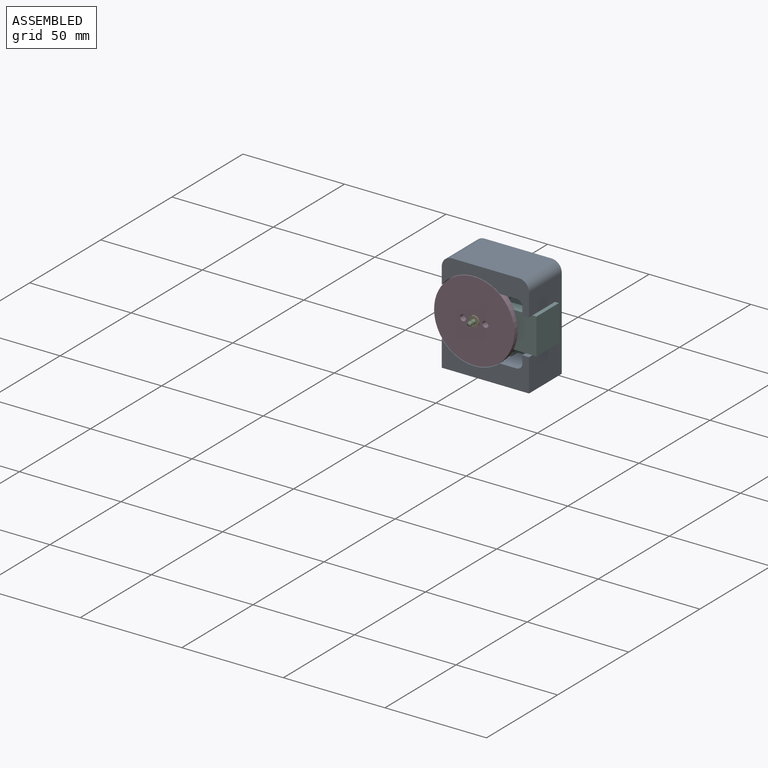
[diagram: assembled view]
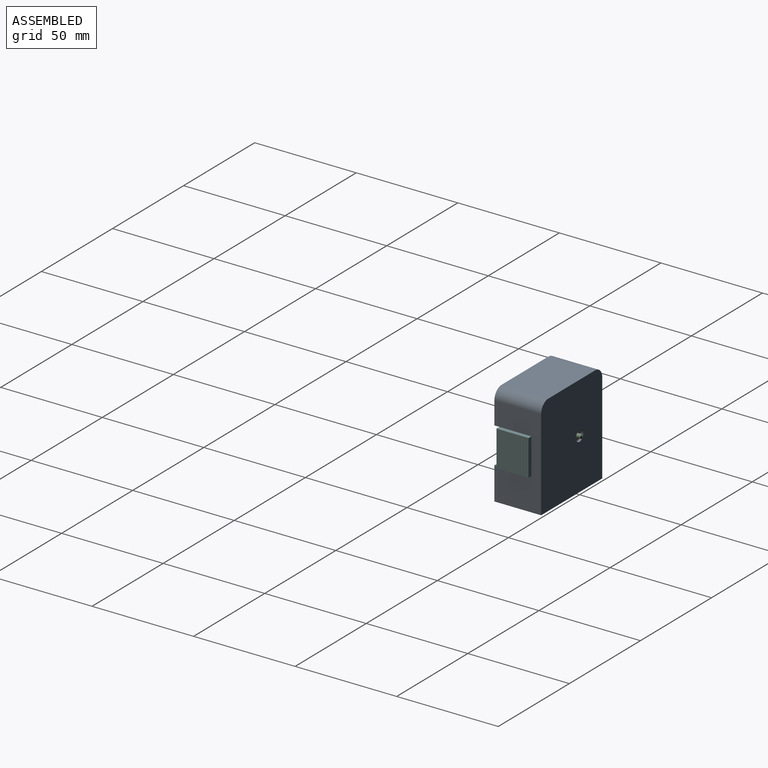
[diagram: assembled view, second angle]
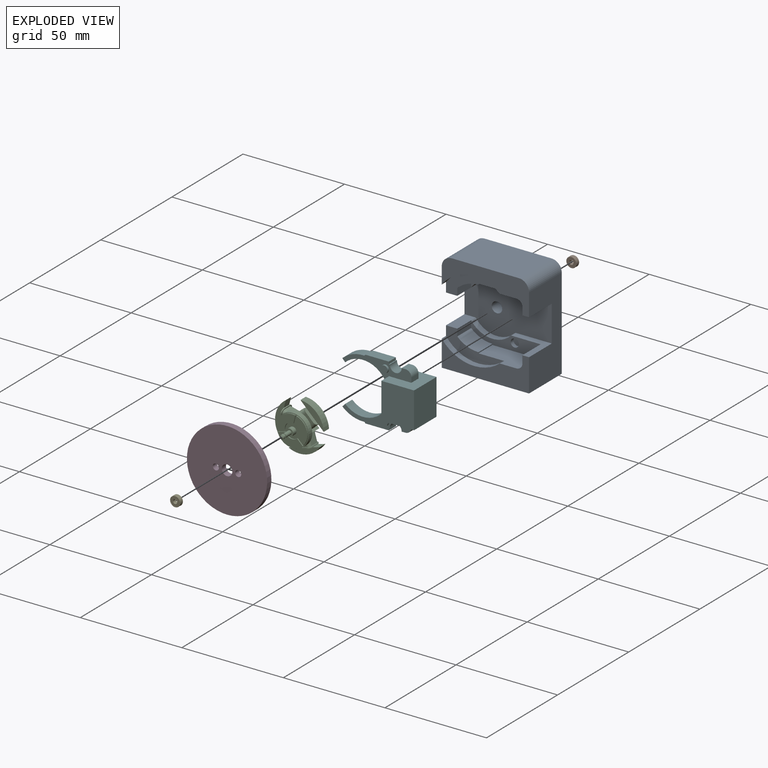
[diagram: exploded view]
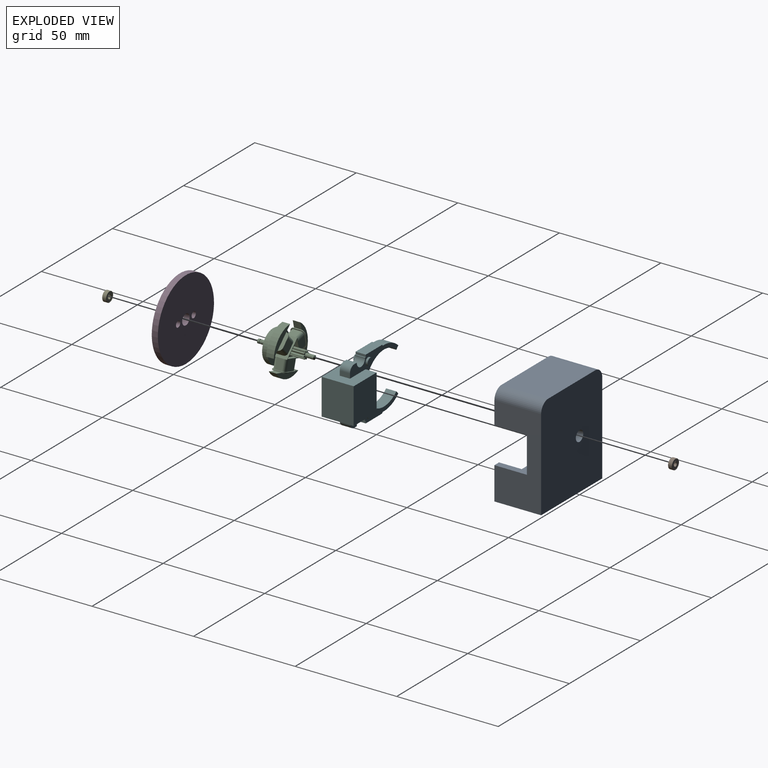
[diagram: exploded view, second angle]
ASSEMBLY  parts=6 mates=5
PART A: 39 faces, bbox 43x23x50 mm
  f0: plane 34.2x8.2mm, normal (0,-1,0), area 145.4mm2, adj f9,f10,f22,f23,f24,f25,f26,f27
  f1: plane 43x25.5mm, normal (0,-1,0), area 819.7mm2, adj f3,f5,f6,f8,f9,f10,f11,f12
  f2: plane 33x23mm, normal (0,0,1), area 759mm2, adj f7,f34,f37,f38
  f3: plane 45x23mm, normal (-1,0,0), area 773.1mm2, adj f1,f4,f7,f8,f12,f21,f28,f33
  f4: plane 43x23mm, normal (0,0,-1), area 989mm2, adj f3,f6,f7,f36
  f5: cylinder r=2.6mm len=7mm, axis (0,1,0), area 114.4mm2, adj f1,f7
  f6: plane 45x23mm, normal (1,0,0), area 751.8mm2, adj f1,f4,f7,f10,f13,f34,f36,f37
  f7: plane 50x43mm, normal (0,1,0), area 2118mm2, adj f2,f3,f4,f5,f6,f37,f38
  f8: plane 13x5.55mm, normal (0,0,-1), area 72.2mm2, adj f1,f3,f9,f23,f28
  f9: cylinder r=12.75mm len=19.63mm, axis (0,1,0), area 72mm2, adj f0,f1,f8,f10
  f10: plane 17.82x16mm, normal (0,0,-1), area 98.6mm2, adj f0,f1,f6,f9,f22,f34
  f11: cylinder r=12.75mm len=19.63mm, axis (0,1,0), area 72mm2, adj f1,f12,f13,f14
  f12: plane 13x5.55mm, normal (0,0,1), area 72.2mm2, adj f1,f3,f11,f20,f21
  f13: plane 17.82x16mm, normal (0,0,1), area 98.6mm2, adj f1,f6,f11,f14,f15,f36
  f14: plane 34.2x8.2mm, normal (0,-1,0), area 145.4mm2, adj f11,f13,f15,f16,f17,f18,f19,f20
  f15: plane 12.8x3.65mm, normal (-1,0,0), area 46.7mm2, adj f13,f14,f16,f36
  f16: cylinder r=3mm len=12.8mm, axis (0,1,0), area 60.3mm2, adj f14,f15,f17,f36
  f17: plane 20.75x12.8mm, normal (0,0,1), area 227.7mm2, adj f14,f16,f18,f21,f35,f36
  f18: plane 9.8x0.5mm, normal (1,0,0), area 4.9mm2, adj f14,f17,f19,f21
  f19: cylinder r=15mm len=10.45mm, axis (0,1,0), area 113.3mm2, adj f14,f18,f20,f21
  f20: plane 9.8x3.46mm, normal (1,0,0), area 33.9mm2, adj f12,f14,f19,f21
  f21: plane 28.64x12.7mm, normal (0,-1,0), area 136.8mm2, adj f3,f12,f17,f18,f19,f20,f35
  f22: plane 12.8x3.65mm, normal (-1,0,0), area 46.7mm2, adj f0,f10,f27,f34
  f23: plane 9.8x3.46mm, normal (1,0,0), area 33.9mm2, adj f0,f8,f24,f28
  f24: cylinder r=15mm len=10.45mm, axis (0,1,0), area 113.3mm2, adj f0,f23,f25,f28
  f25: plane 9.8x0.5mm, normal (1,0,0), area 4.9mm2, adj f0,f24,f26,f28
  f26: plane 20.75x12.8mm, normal (0,0,-1), area 227.7mm2, adj f0,f25,f27,f28,f33,f34
  f27: cylinder r=3mm len=12.8mm, axis (0,1,0), area 60.3mm2, adj f0,f22,f26,f34
  f28: plane 28.64x12.7mm, normal (0,-1,0), area 136.8mm2, adj f3,f8,f23,f24,f25,f26,f33
  f29: cylinder r=2mm len=4mm, axis (0,-1,0), area 25.1mm2, adj f14,f30
  f30: plane 4x4mm, normal (0,-1,0), area 12.6mm2, adj f29
  f31: cylinder r=2mm len=4mm, axis (0,-1,0), area 25.1mm2, adj f0,f32
  f32: plane 4x4mm, normal (0,-1,0), area 12.6mm2, adj f31
  f33: cylinder r=20mm len=28.64mm, axis (0,1,0), area 96.7mm2, adj f3,f26,f28,f34
  f34: plane 43x16.15mm, normal (0,-1,0), area 349mm2, adj f2,f3,f6,f10,f22,f26,f27,f33
  f35: cylinder r=20mm len=28.64mm, axis (0,1,0), area 96.7mm2, adj f3,f17,f21,f36
  f36: plane 43x16.15mm, normal (0,-1,0), area 359.7mm2, adj f3,f4,f6,f13,f15,f16,f17,f35
  f37: cylinder r=5mm len=23mm, axis (0,1,0), area 180.6mm2, adj f2,f6,f7,f34
  f38: cylinder r=5mm len=23mm, axis (0,-1,0), area 180.6mm2, adj f2,f3,f7,f34
PART B: 16 faces, bbox 5.4x2x5.4 mm
  f0: cylinder r=1mm len=2mm, axis (0,-1,0), area 11.3mm2, adj f1,f15
  f1: torus R=1.1mm, axis (0,-1,0), area 1mm2, adj f0,f2
  f2: plane 2.5x2.5mm, normal (0,1,0), area 1.1mm2, adj f1,f3
  f3: cylinder r=1.25mm len=2.5mm, axis (0,-1,0), area 0.8mm2, adj f2,f4
  f4: plane 4.5x4.5mm, normal (0,1,0), area 11mm2, adj f3,f5
  f5: cylinder r=2.25mm len=4.5mm, axis (0,-1,0), area 1.4mm2, adj f4,f6
  f6: plane 4.8x4.8mm, normal (0,1,0), area 2.2mm2, adj f5,f7
  f7: torus R=2.4mm, axis (0,-1,0), area 2.4mm2, adj f6,f8
  f8: cylinder r=2.5mm len=5mm, axis (0,-1,0), area 28.3mm2, adj f7,f9
  f9: torus R=2.4mm, axis (0,-1,0), area 2.4mm2, adj f8,f10
  f10: plane 4.8x4.8mm, normal (0,-1,0), area 2.2mm2, adj f9,f11
  f11: cylinder r=2.25mm len=4.5mm, axis (0,-1,0), area 1.4mm2, adj f10,f12
  f12: plane 4.5x4.5mm, normal (0,-1,0), area 11mm2, adj f11,f13
  f13: cylinder r=1.25mm len=2.5mm, axis (0,-1,0), area 0.8mm2, adj f12,f14
  f14: plane 2.5x2.5mm, normal (0,-1,0), area 1.1mm2, adj f13,f15
  f15: torus R=1.1mm, axis (0,-1,0), area 1mm2, adj f0,f14
PART C: 141 faces, bbox 24x28.9x23.4 mm
  f0: cylinder r=1mm len=3.8mm, axis (0,1,0), area 23.9mm2, adj f65,f137
  f1: plane 10.2x8mm, normal (0,0,1), area 35.3mm2, adj f69,f108,f110,f111,f112,f113,f114,f115
  f2: plane 3.75x3.22mm, normal (0.87,0,0.5), area 13.9mm2, adj f4,f5,f6,f12,f13,f14
  f3: plane 3.75x3.22mm, normal (0.87,0,0.5), area 13.9mm2, adj f4,f5,f6,f8,f9,f10
  f4: plane 13.86x8.25mm, normal (0,1,0), area 33.5mm2, adj f2,f3,f6,f7
  f5: plane 13.86x8.25mm, normal (0,-1,0), area 33.5mm2, adj f2,f3,f6,f25
  f6: cylinder r=12mm len=13.86mm, axis (0,1,0), area 65.7mm2, adj f2,f3,f4,f5
  f7: plane 7.43x4.29mm, normal (-0.87,0,-0.5), area 13.8mm2, adj f4,f10,f11,f12
  f8: cylinder r=2mm len=2mm, axis (0.87,0,0.5), area 1.6mm2, adj f3,f9,f15,f16,f25
  f9: plane 3.35x0.43mm, normal (0.5,0,-0.87), area 1.7mm2, adj f3,f8,f10,f16
  f10: cylinder r=2mm len=2mm, axis (0.87,0,0.5), area 1.6mm2, adj f3,f7,f9,f11,f16
  f11: plane 4.23x2.73mm, normal (0,1,0), area 2.3mm2, adj f7,f10,f12,f16
  f12: cylinder r=2mm len=2mm, axis (0.87,0,0.5), area 1.6mm2, adj f2,f7,f11,f13,f16
  f13: plane 3.35x0.43mm, normal (-0.5,0,0.87), area 1.7mm2, adj f2,f12,f14,f16
  f14: cylinder r=2mm len=2mm, axis (0.87,0,0.5), area 1.6mm2, adj f2,f13,f15,f16,f25
  f15: plane 4.23x2.73mm, normal (0,-1,0), area 2.3mm2, adj f8,f14,f16,f25
  f16: plane 7.45x7.35mm, normal (0.87,0,0.5), area 13.4mm2, adj f8,f9,f10,f11,f12,f13,f14,f15
  f17: cylinder r=1.5mm len=5.51mm, axis (0.87,0,0.5), area 13mm2, adj f16,f18,f24,f111
  f18: plane 7.06x6.73mm, normal (0,1,0), area 25.3mm2, adj f16,f17,f19,f111
  f19: cylinder r=1.5mm len=5.51mm, axis (0.87,0,0.5), area 13mm2, adj f16,f18,f20,f111
  f20: plane 4.76x3.35mm, normal (-0.5,0,0.87), area 18.4mm2, adj f16,f19,f21,f111
  f21: cylinder r=1.5mm len=5.51mm, axis (0.87,0,0.5), area 13mm2, adj f16,f20,f22,f111
  f22: plane 7.06x6.73mm, normal (0,-1,0), area 25.3mm2, adj f16,f21,f23,f111
  f23: cylinder r=1.5mm len=5.51mm, axis (0.87,0,0.5), area 13mm2, adj f16,f22,f24,f111
  f24: plane 4.76x3.35mm, normal (0.5,0,-0.87), area 18.4mm2, adj f16,f17,f23,f111
  f25: plane 7.43x4.29mm, normal (-0.87,0,-0.5), area 13.8mm2, adj f5,f8,f14,f15
  f26: plane 11.03x7.25mm, normal (0,-1,0), area 43.2mm2, adj f27,f28,f29,f30
  f27: plane 3.88x0.5mm, normal (0,0,1), area 1.9mm2, adj f26,f28,f30,f67
  f28: cylinder r=7.5mm len=11.03mm, axis (0,1,0), area 7.6mm2, adj f26,f27,f29,f67
  f29: plane 3.36x1.94mm, normal (-0.87,0,0.5), area 1.9mm2, adj f26,f28,f30,f67
  f30: cylinder r=3.62mm len=5.21mm, axis (0,1,0), area 3.5mm2, adj f26,f27,f29,f67
  f31: plane 11.03x7.25mm, normal (0,-1,0), area 43.2mm2, adj f32,f33,f34,f35
  f32: plane 3.36x1.94mm, normal (-0.87,0,-0.5), area 1.9mm2, adj f31,f33,f35,f67
  f33: cylinder r=7.5mm len=11.03mm, axis (0,1,0), area 7.6mm2, adj f31,f32,f34,f67
  f34: plane 3.88x0.5mm, normal (0,0,-1), area 1.9mm2, adj f31,f33,f35,f67
  f35: cylinder r=3.62mm len=5.21mm, axis (0,1,0), area 3.5mm2, adj f31,f32,f34,f67
  f36: plane 12.73x5.48mm, normal (0,-1,0), area 43.2mm2, adj f37,f38,f39,f40
  f37: plane 3.36x1.94mm, normal (0.87,0,-0.5), area 1.9mm2, adj f36,f38,f40,f67
  f38: cylinder r=7.5mm len=12.73mm, axis (0,1,0), area 7.6mm2, adj f36,f37,f39,f67
  f39: plane 3.36x1.94mm, normal (0.87,0,0.5), area 1.9mm2, adj f36,f38,f40,f67
  f40: cylinder r=3.62mm len=6.01mm, axis (0,1,0), area 3.5mm2, adj f36,f37,f39,f67
  f41: plane 3.75x3.22mm, normal (-0.87,0,0.5), area 13.9mm2, adj f43,f44,f45,f51,f52,f53
  f42: plane 3.75x3.22mm, normal (-0.87,0,0.5), area 13.9mm2, adj f43,f44,f45,f47,f48,f49
  f43: plane 13.86x8.25mm, normal (0,1,0), area 33.5mm2, adj f41,f42,f45,f46
  f44: plane 13.86x8.25mm, normal (0,-1,0), area 33.5mm2, adj f41,f42,f45,f64
  f45: cylinder r=12mm len=13.86mm, axis (0,1,0), area 65.7mm2, adj f41,f42,f43,f44
  f46: plane 7.43x4.29mm, normal (0.87,0,-0.5), area 13.8mm2, adj f43,f49,f50,f51
  f47: cylinder r=2mm len=2mm, axis (-0.87,0,0.5), area 1.6mm2, adj f42,f48,f54,f55,f64
  f48: plane 3.35x0.43mm, normal (0.5,0,0.87), area 1.7mm2, adj f42,f47,f49,f55
  f49: cylinder r=2mm len=2mm, axis (-0.87,0,0.5), area 1.6mm2, adj f42,f46,f48,f50,f55
  f50: plane 4.23x2.73mm, normal (0,1,0), area 2.3mm2, adj f46,f49,f51,f55
  f51: cylinder r=2mm len=2mm, axis (-0.87,0,0.5), area 1.6mm2, adj f41,f46,f50,f52,f55
  f52: plane 3.35x0.43mm, normal (-0.5,0,-0.87), area 1.7mm2, adj f41,f51,f53,f55
  f53: cylinder r=2mm len=2mm, axis (-0.87,0,0.5), area 1.6mm2, adj f41,f52,f54,f55,f64
  f54: plane 4.23x2.73mm, normal (0,-1,0), area 2.3mm2, adj f47,f53,f55,f64
  f55: plane 7.45x7.35mm, normal (-0.87,0,0.5), area 13.4mm2, adj f47,f48,f49,f50,f51,f52,f53,f54
  f56: cylinder r=1.5mm len=5.51mm, axis (-0.87,0,0.5), area 13mm2, adj f55,f57,f63,f110
  f57: plane 7.06x6.73mm, normal (0,1,0), area 25.3mm2, adj f55,f56,f58,f110
  f58: cylinder r=1.5mm len=5.51mm, axis (-0.87,0,0.5), area 13mm2, adj f55,f57,f59,f110
  f59: plane 4.76x3.35mm, normal (-0.5,0,-0.87), area 18.4mm2, adj f55,f58,f60,f110
  f60: cylinder r=1.5mm len=5.51mm, axis (-0.87,0,0.5), area 13mm2, adj f55,f59,f61,f110
  f61: plane 7.06x6.73mm, normal (0,-1,0), area 25.3mm2, adj f55,f60,f62,f110
  f62: cylinder r=1.5mm len=5.51mm, axis (-0.87,0,0.5), area 13mm2, adj f55,f61,f63,f110
  f63: plane 4.76x3.35mm, normal (0.5,0,0.87), area 18.4mm2, adj f55,f56,f62,f110
  f64: plane 7.43x4.29mm, normal (0.87,0,-0.5), area 13.8mm2, adj f44,f47,f53,f54
  f65: plane 3.55x3.55mm, normal (0,-1,0), area 6.8mm2, adj f0,f66
  f66: cylinder r=1.78mm len=3.55mm, axis (0,1,0), area 25.7mm2, adj f65,f67
  f67: plane 15.7x15.7mm, normal (0,-1,0), area 54.1mm2, adj f27,f28,f29,f30,f32,f33,f34,f35
  f68: cylinder r=7.85mm len=15.7mm, axis (0,1,0), area 123.3mm2, adj f67,f69
  f69: plane 15.7x15.7mm, normal (0,1,0), area 148.5mm2, adj f1,f68,f110,f111
  f70: cone r=1mm half-angle=60deg, axis (0,-1,0), area 3.6mm2, adj f71
  f71: cylinder r=1mm len=4.12mm, axis (0,-1,0), area 25.9mm2, adj f70,f72
  f72: plane 3.78x3.78mm, normal (0,1,0), area 5.3mm2, adj f71,f73,f74,f75,f76,f77,f78,f79
  f73: plane 7.5x0.21mm, normal (0.71,0,0.71), area 2.3mm2, adj f72,f74,f104,f109
  f74: cylinder r=1mm len=7.5mm, axis (0,-1,0), area 6.3mm2, adj f72,f73,f75,f109
  f75: cylinder r=2mm len=7.5mm, axis (0,-1,0), area 1.9mm2, adj f72,f74,f76,f109
  f76: cylinder r=1mm len=7.5mm, axis (0,-1,0), area 6.3mm2, adj f72,f75,f77,f109
  f77: plane 7.5x0.3mm, normal (0,0,1), area 2.2mm2, adj f72,f76,f78,f109
  f78: cylinder r=1mm len=7.5mm, axis (0,-1,0), area 6.3mm2, adj f72,f77,f79,f109
  f79: cylinder r=2mm len=7.5mm, axis (0,-1,0), area 1.9mm2, adj f72,f78,f80,f109
  f80: cylinder r=1mm len=7.5mm, axis (0,-1,0), area 6.3mm2, adj f72,f79,f81,f109
  f81: plane 7.5x0.21mm, normal (-0.71,0,0.71), area 2.3mm2, adj f72,f80,f82,f109
  f82: cylinder r=1mm len=7.5mm, axis (0,-1,0), area 6.3mm2, adj f72,f81,f83,f109
  f83: cylinder r=2mm len=7.5mm, axis (0,-1,0), area 1.9mm2, adj f72,f82,f84,f109
  f84: cylinder r=1mm len=7.5mm, axis (0,-1,0), area 6.3mm2, adj f72,f83,f85,f109
  f85: plane 7.5x0.3mm, normal (-1,0,0), area 2.2mm2, adj f72,f84,f86,f109
  f86: cylinder r=1mm len=7.5mm, axis (0,-1,0), area 6.3mm2, adj f72,f85,f87,f109
  f87: cylinder r=2mm len=7.5mm, axis (0,-1,0), area 1.9mm2, adj f72,f86,f88,f109
  f88: cylinder r=1mm len=7.5mm, axis (0,-1,0), area 6.3mm2, adj f72,f87,f89,f109
  f89: plane 7.5x0.21mm, normal (-0.71,0,-0.71), area 2.3mm2, adj f72,f88,f90,f109
  f90: cylinder r=1mm len=7.5mm, axis (0,-1,0), area 6.3mm2, adj f72,f89,f91,f109
  f91: cylinder r=2mm len=7.5mm, axis (0,-1,0), area 1.9mm2, adj f72,f90,f92,f109
  f92: cylinder r=1mm len=7.5mm, axis (0,-1,0), area 6.3mm2, adj f72,f91,f93,f109
  f93: plane 7.5x0.3mm, normal (0,0,-1), area 2.2mm2, adj f72,f92,f94,f109
  f94: cylinder r=1mm len=7.5mm, axis (0,-1,0), area 6.3mm2, adj f72,f93,f95,f109
  f95: cylinder r=2mm len=7.5mm, axis (0,-1,0), area 1.9mm2, adj f72,f94,f96,f109
  f96: cylinder r=1mm len=7.5mm, axis (0,-1,0), area 6.3mm2, adj f72,f95,f97,f109
  f97: plane 7.5x0.21mm, normal (0.71,0,-0.71), area 2.3mm2, adj f72,f96,f98,f109
  f98: cylinder r=1mm len=7.5mm, axis (0,-1,0), area 6.3mm2, adj f72,f97,f99,f109
  f99: cylinder r=2mm len=7.5mm, axis (0,-1,0), area 1.9mm2, adj f72,f98,f100,f109
  f100: cylinder r=1mm len=7.5mm, axis (0,-1,0), area 6.3mm2, adj f72,f99,f101,f109
  f101: plane 7.5x0.3mm, normal (1,0,0), area 2.2mm2, adj f72,f100,f102,f109
  f102: cylinder r=1mm len=7.5mm, axis (0,-1,0), area 6.3mm2, adj f72,f101,f103,f109
  f103: cylinder r=2mm len=7.5mm, axis (0,-1,0), area 1.9mm2, adj f72,f102,f104,f109
  f104: cylinder r=1mm len=7.5mm, axis (0,-1,0), area 6.3mm2, adj f72,f73,f103,f109
  f105: plane 7.93x4.58mm, normal (0.87,0,0.5), area 18.3mm2, adj f106,f107,f108,f109
  f106: plane 7.93x4.58mm, normal (-0.87,0,0.5), area 18.3mm2, adj f105,f107,f108,f109
  f107: plane 9.16x2mm, normal (0,0,-1), area 18.3mm2, adj f105,f106,f108,f109
  f108: plane 10.2x8.83mm, normal (0,1,0), area 8.7mm2, adj f1,f105,f106,f107,f110,f111
  f109: plane 9.16x7.93mm, normal (0,1,0), area 27.9mm2, adj f73,f74,f75,f76,f77,f78,f79,f80
  f110: plane 8.83x8mm, normal (0.87,0,-0.5), area 35.3mm2, adj f1,f56,f57,f58,f59,f60,f61,f62
  f111: plane 8.83x8mm, normal (-0.87,0,-0.5), area 35.3mm2, adj f1,f17,f18,f19,f20,f21,f22,f23
  f112: plane 5.5x3.35mm, normal (-1,0,0), area 18.4mm2, adj f1,f113,f119,f135
  f113: cylinder r=1.5mm len=5.5mm, axis (0,0,-1), area 13mm2, adj f1,f112,f114,f135
  f114: plane 5.5x4.6mm, normal (0,-1,0), area 25.3mm2, adj f1,f113,f115,f135
  f115: cylinder r=1.5mm len=5.5mm, axis (0,0,-1), area 13mm2, adj f1,f114,f116,f135
  f116: plane 5.5x3.35mm, normal (1,0,0), area 18.4mm2, adj f1,f115,f117,f135
  f117: cylinder r=1.5mm len=5.5mm, axis (0,0,-1), area 13mm2, adj f1,f116,f118,f135
  f118: plane 5.5x4.6mm, normal (0,1,0), area 25.3mm2, adj f1,f117,f119,f135
  f119: cylinder r=1.5mm len=5.5mm, axis (0,0,-1), area 13mm2, adj f1,f112,f118,f135
  f120: plane 16x3.06mm, normal (0,1,0), area 33.5mm2, adj f121,f123,f124,f125
  f121: cylinder r=12mm len=16mm, axis (0,1,0), area 65.7mm2, adj f120,f122,f123,f125
  f122: plane 16x3.06mm, normal (0,-1,0), area 33.5mm2, adj f121,f123,f125,f126
  f123: plane 3.75x3.71mm, normal (0,0,-1), area 13.9mm2, adj f120,f121,f122,f127,f128,f129
  f124: plane 8.58x1.8mm, normal (0,0,1), area 13.8mm2, adj f120,f129,f130,f131
  f125: plane 3.75x3.71mm, normal (0,0,-1), area 13.9mm2, adj f120,f121,f122,f131,f132,f133
  f126: plane 8.58x1.8mm, normal (0,0,1), area 13.8mm2, adj f122,f127,f133,f134
  f127: cylinder r=2mm len=2mm, axis (0,0,-1), area 1.6mm2, adj f123,f126,f128,f134,f135
  f128: plane 3.35x0.5mm, normal (1,0,0), area 1.7mm2, adj f123,f127,f129,f135
  f129: cylinder r=2mm len=2mm, axis (0,0,-1), area 1.6mm2, adj f123,f124,f128,f130,f135
  f130: plane 4.6x0.5mm, normal (0,1,0), area 2.3mm2, adj f124,f129,f131,f135
  f131: cylinder r=2mm len=2mm, axis (0,0,-1), area 1.6mm2, adj f124,f125,f130,f132,f135
  f132: plane 3.35x0.5mm, normal (-1,0,0), area 1.7mm2, adj f125,f131,f133,f135
  f133: cylinder r=2mm len=2mm, axis (0,0,-1), area 1.6mm2, adj f125,f126,f132,f134,f135
  f134: plane 4.6x0.5mm, normal (0,-1,0), area 2.3mm2, adj f126,f127,f133,f135
  f135: plane 8.6x7.35mm, normal (0,0,-1), area 13.4mm2, adj f112,f113,f114,f115,f116,f117,f118,f119
  f136: plane 2x2mm, normal (0,1,0), area 1.4mm2, adj f138,f140
  f137: plane 2x2mm, normal (0,-1,0), area 1.4mm2, adj f0,f138
  f138: cylinder r=0.75mm len=1.5mm, axis (0,1,0), area 2.4mm2, adj f136,f137
  f139: cone r=1mm half-angle=60deg, axis (0,1,0), area 3.6mm2, adj f140
  f140: cylinder r=1mm len=2mm, axis (0,1,0), area 6.1mm2, adj f136,f139
PART D: 6 faces, bbox 39.5x3x39.5 mm
  f0: cylinder r=1.5mm len=3mm, axis (0,1,0), area 28.3mm2, adj f4,f5
  f1: cylinder r=1.5mm len=3mm, axis (0,1,0), area 28.3mm2, adj f4,f5
  f2: cylinder r=19.75mm len=39.5mm, axis (0,1,0), area 372.3mm2, adj f4,f5
  f3: cylinder r=2.6mm len=5.2mm, axis (0,1,0), area 49mm2, adj f4,f5
  f4: plane 39.5x39.5mm, normal (0,-1,0), area 1190mm2, adj f0,f1,f2,f3
  f5: plane 39.5x39.5mm, normal (0,1,0), area 1190mm2, adj f0,f1,f2,f3
PART E: same geometry as B
PART F: 38 faces, bbox 39.1x15.8x30.6 mm
  f0: plane 17.7x5.4mm, normal (-1,0,0), area 95.6mm2, adj f1,f3,f6,f29
  f1: plane 16.1x15.8mm, normal (0,0,1), area 199.4mm2, adj f0,f2,f4,f5,f6,f8,f28,f29
  f2: plane 17.7x5.4mm, normal (-1,0,0), area 95.6mm2, adj f1,f3,f5,f28
  f3: plane 16.1x15.8mm, normal (0,0,-1), area 199.4mm2, adj f0,f2,f4,f5,f6,f7,f28,f29
  f4: plane 17.7x15.8mm, normal (1,0,0), area 279.7mm2, adj f1,f3,f5,f6
  f5: plane 17.7x16.1mm, normal (0,-1,0), area 285mm2, adj f1,f2,f3,f4
  f6: plane 17.7x16.1mm, normal (0,1,0), area 285mm2, adj f0,f1,f3,f4
  f7: plane 5x2.3mm, normal (1,0,0), area 11.5mm2, adj f3,f27,f28,f29
  f8: plane 5x2.3mm, normal (1,0,0), area 11.5mm2, adj f1,f9,f28,f29
  f9: cylinder r=3mm len=5mm, axis (0,1,0), area 23.6mm2, adj f8,f10,f28,f29
  f10: plane 5x1.8mm, normal (0,0,1), area 9mm2, adj f9,f11,f28,f29
  f11: cylinder r=2.9mm len=5.8mm, axis (0,1,0), area 46.6mm2, adj f10,f12,f28,f29
  f12: plane 5x0.5mm, normal (0,0,1), area 2.5mm2, adj f11,f13,f28,f29
  f13: plane 5x1.15mm, normal (1,0,0.02), area 5.8mm2, adj f12,f14,f28,f29
  f14: plane 11.47x5mm, normal (0,0,1), area 57.4mm2, adj f13,f15,f28,f29
  f15: plane 5x0.57mm, normal (-0.73,0,0.69), area 3.9mm2, adj f14,f16,f28,f29
  f16: cylinder r=14.75mm len=10.87mm, axis (0,1,0), area 59.5mm2, adj f15,f17,f28,f29
  f17: plane 5x1.49mm, normal (-0.73,0,-0.69), area 10.2mm2, adj f16,f18,f28,f29
  f18: cylinder r=12.7mm len=25.4mm, axis (0,1,0), area 295.4mm2, adj f17,f19,f28,f29
  f19: plane 5x1.49mm, normal (-0.73,0,0.69), area 10.2mm2, adj f18,f20,f28,f29
  f20: cylinder r=14.75mm len=10.87mm, axis (0,1,0), area 59.5mm2, adj f19,f21,f28,f29
  f21: plane 5x0.57mm, normal (-0.73,0,-0.69), area 3.9mm2, adj f20,f22,f28,f29
  f22: plane 11.49x5mm, normal (0,0,-1), area 57.5mm2, adj f21,f23,f28,f29
  f23: plane 5x1.15mm, normal (1,0,0), area 5.8mm2, adj f22,f24,f28,f29
  f24: plane 5x0.5mm, normal (0,0,-1), area 2.5mm2, adj f23,f25,f28,f29
  f25: cylinder r=2.9mm len=5.8mm, axis (0,1,0), area 46.6mm2, adj f24,f26,f28,f29
  f26: plane 5x1.8mm, normal (0,0,-1), area 9mm2, adj f25,f27,f28,f29
  f27: cylinder r=3mm len=5mm, axis (0,1,0), area 23.6mm2, adj f7,f26,f28,f29
  f28: plane 34x30.6mm, normal (0,-1,0), area 247.1mm2, adj f1,f2,f3,f7,f8,f9,f10,f11
  f29: plane 34x30.6mm, normal (0,1,0), area 247.1mm2, adj f0,f1,f3,f7,f8,f9,f10,f11
  f30: plane 3.6x3.6mm, normal (0,1,0), area 10.2mm2, adj f31
  f31: cylinder r=1.8mm len=3.6mm, axis (0,1,0), area 11.3mm2, adj f29,f30
  f32: cylinder r=1.8mm len=3.6mm, axis (0,1,0), area 11.3mm2, adj f28,f33
  f33: plane 3.6x3.6mm, normal (0,-1,0), area 10.2mm2, adj f32
  f34: plane 3.6x3.6mm, normal (0,1,0), area 10.2mm2, adj f35
  f35: cylinder r=1.8mm len=3.6mm, axis (0,1,0), area 11.3mm2, adj f29,f34
  f36: cylinder r=1.8mm len=3.6mm, axis (0,1,0), area 11.3mm2, adj f28,f37
  f37: plane 3.6x3.6mm, normal (0,-1,0), area 10.2mm2, adj f36
PLACE A at identity fixed
PLACE B t=(0,-2.03,0)mm
PLACE C rot(axis=(0,1,0),164.2deg) t=(0,-12.53,0)mm
PLACE D rot(axis=(0,1,0),0deg) t=(0,0,0)mm
PLACE E rot(axis=(0,-1,0),0.4deg) t=(0,-22.33,0)mm
PLACE F t=(0,-12.7,0)mm
MATE cylindrical A.f5 <-> B.f0  axis (0,-1,0) through (0,-7,0)mm
MATE revolute C.f70 <-> B.f0  axis (0,-1,0) through (0,-3.03,0)mm
MATE revolute E.f0 <-> C.f0  axis (0,1,0) through (0,-21.33,0)mm
MATE revolute D.f2 <-> A.f33  axis (0,1,0) through (0,-20,0)mm
MATE fastened F.f18 <-> A.f11  axis (0,1,0) through (0,-10.2,0)mm
